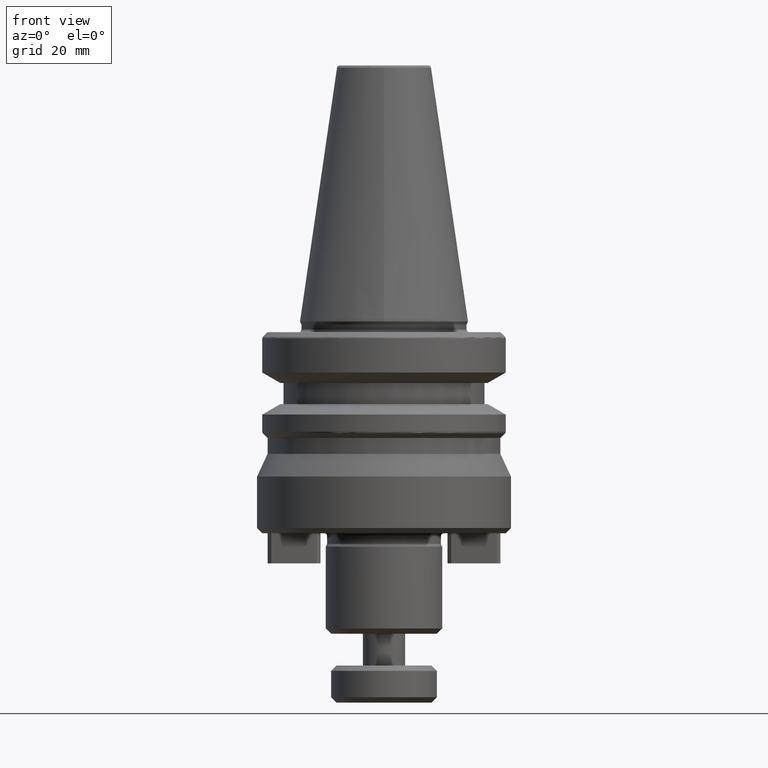
[diagram: clean part render]
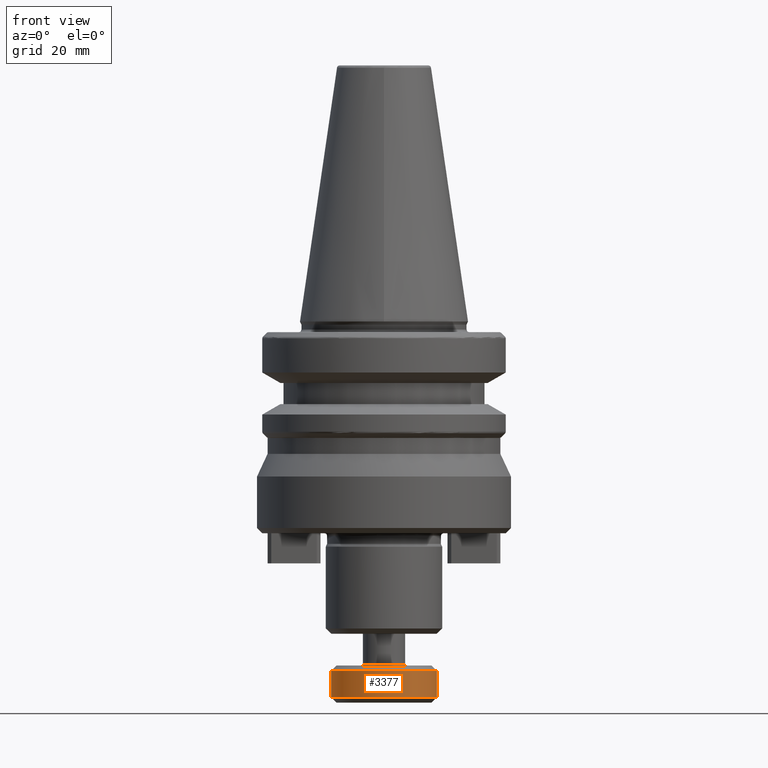
[diagram: same view with one face highlighted and labeled with its STEP entity id]
A machine part, front view. The second image highlights one B-rep face of the part: STEP entity #3377.
In plain terms, the highlighted cylindrical surface (partial cylindrical patch) has radius 10 mm, axis along (-0, -0, 1).
Its self-contained STEP definition (entity closure, byte-faithful):
#23 = DIRECTION ( 'NONE',  ( -1.000000000000000000, 0.0000000000000000000, 0.0000000000000000000 ) ) ;
#24 = DIRECTION ( 'NONE',  ( 0.0000000000000000000, 0.0000000000000000000, -1.000000000000000000 ) ) ;
#27 = CARTESIAN_POINT ( 'NONE',  ( 0.0000000000000000000, 0.0000000000000000000, -66.00000000000000000 ) ) ;
#187 = VECTOR ( 'NONE', #2010, 1000.000000000000000 ) ;
#321 = DIRECTION ( 'NONE',  ( 1.000000000000000000, 0.0000000000000000000, 0.0000000000000000000 ) ) ;
#446 = LINE ( 'NONE', #1483, #1847 ) ;
#461 = CARTESIAN_POINT ( 'NONE',  ( 10.00000000000000000, 0.0000000000000000000, -66.00000000000000000 ) ) ;
#497 = EDGE_CURVE ( 'NONE', #1085, #730, #446, .T. ) ;
#530 = VERTEX_POINT ( 'NONE', #461 ) ;
#634 = ORIENTED_EDGE ( 'NONE', *, *, #1347, .T. ) ;
#726 = EDGE_CURVE ( 'NONE', #2006, #530, #2996, .T. ) ;
#730 = VERTEX_POINT ( 'NONE', #2055 ) ;
#753 = ORIENTED_EDGE ( 'NONE', *, *, #3007, .T. ) ;
#837 = CARTESIAN_POINT ( 'NONE',  ( 0.0000000000000000000, 0.0000000000000000000, 75.45606712530592100 ) ) ;
#994 = DIRECTION ( 'NONE',  ( 1.000000000000000000, 0.0000000000000000000, 0.0000000000000000000 ) ) ;
#1085 = VERTEX_POINT ( 'NONE', #3142 ) ;
#1339 = CIRCLE ( 'NONE', #3126, 10.00000000000000000 ) ;
#1347 = EDGE_CURVE ( 'NONE', #530, #730, #1339, .T. ) ;
#1456 = ORIENTED_EDGE ( 'NONE', *, *, #497, .F. ) ;
#1483 = CARTESIAN_POINT ( 'NONE',  ( -10.00000000000000000, 1.224646799147353300E-015, 75.45606712530592100 ) ) ;
#1503 = DIRECTION ( 'NONE',  ( -0.0000000000000000000, -0.0000000000000000000, 1.000000000000000000 ) ) ;
#1526 = EDGE_LOOP ( 'NONE', ( #1456, #753, #1974, #634 ) ) ;
#1730 = AXIS2_PLACEMENT_3D ( 'NONE', #837, #2831, #321 ) ;
#1847 = VECTOR ( 'NONE', #1503, 1000.000000000000000 ) ;
#1974 = ORIENTED_EDGE ( 'NONE', *, *, #726, .T. ) ;
#2006 = VERTEX_POINT ( 'NONE', #2378 ) ;
#2010 = DIRECTION ( 'NONE',  ( -0.0000000000000000000, -0.0000000000000000000, 1.000000000000000000 ) ) ;
#2035 = CARTESIAN_POINT ( 'NONE',  ( 10.00000000000000000, 0.0000000000000000000, 75.45606712530592100 ) ) ;
#2055 = CARTESIAN_POINT ( 'NONE',  ( -10.00000000000000000, 1.224646799147353300E-015, -66.00000000000000000 ) ) ;
#2125 = AXIS2_PLACEMENT_3D ( 'NONE', #3341, #2366, #994 ) ;
#2186 = CIRCLE ( 'NONE', #2125, 10.00000000000000000 ) ;
#2366 = DIRECTION ( 'NONE',  ( -0.0000000000000000000, -0.0000000000000000000, 1.000000000000000000 ) ) ;
#2378 = CARTESIAN_POINT ( 'NONE',  ( 10.00000000000000000, 0.0000000000000000000, -70.99999999999998600 ) ) ;
#2528 = FACE_OUTER_BOUND ( 'NONE', #1526, .T. ) ;
#2831 = DIRECTION ( 'NONE',  ( -0.0000000000000000000, -0.0000000000000000000, 1.000000000000000000 ) ) ;
#2996 = LINE ( 'NONE', #2035, #187 ) ;
#3007 = EDGE_CURVE ( 'NONE', #1085, #2006, #2186, .T. ) ;
#3126 = AXIS2_PLACEMENT_3D ( 'NONE', #27, #24, #23 ) ;
#3142 = CARTESIAN_POINT ( 'NONE',  ( -10.00000000000000000, 1.224646799147353300E-015, -70.99999999999998600 ) ) ;
#3212 = CYLINDRICAL_SURFACE ( 'NONE', #1730, 10.00000000000000000 ) ;
#3341 = CARTESIAN_POINT ( 'NONE',  ( 0.0000000000000000000, 0.0000000000000000000, -70.99999999999998600 ) ) ;
#3377 = ADVANCED_FACE ( 'NONE', ( #2528 ), #3212, .T. ) ;